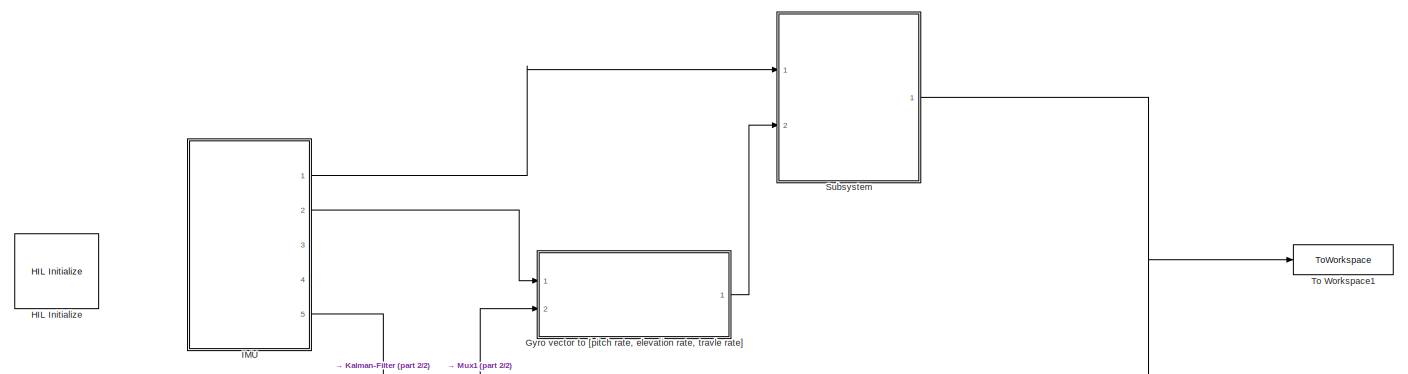
[diagram: root canvas - part 1/2, full width, top band]
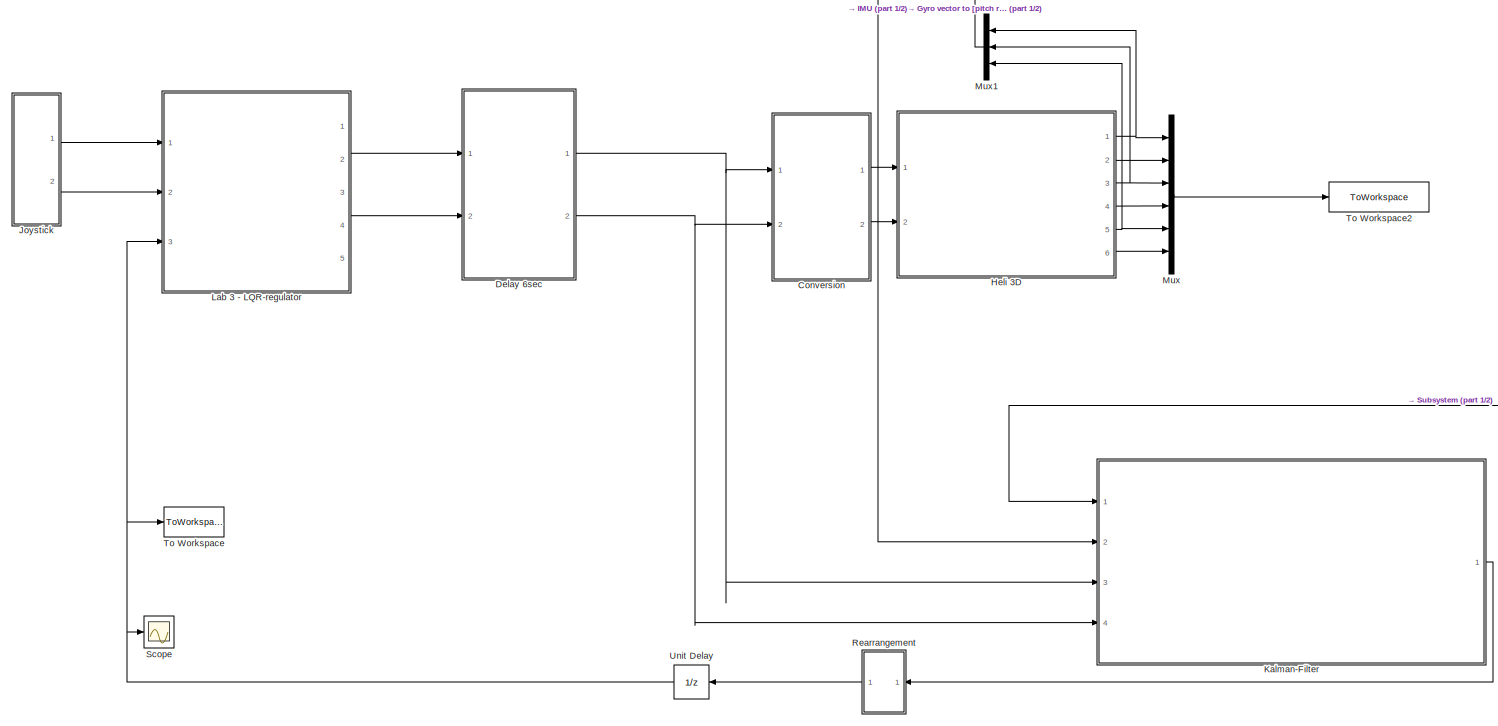
[diagram: root canvas - part 2/2, full width, middle band]
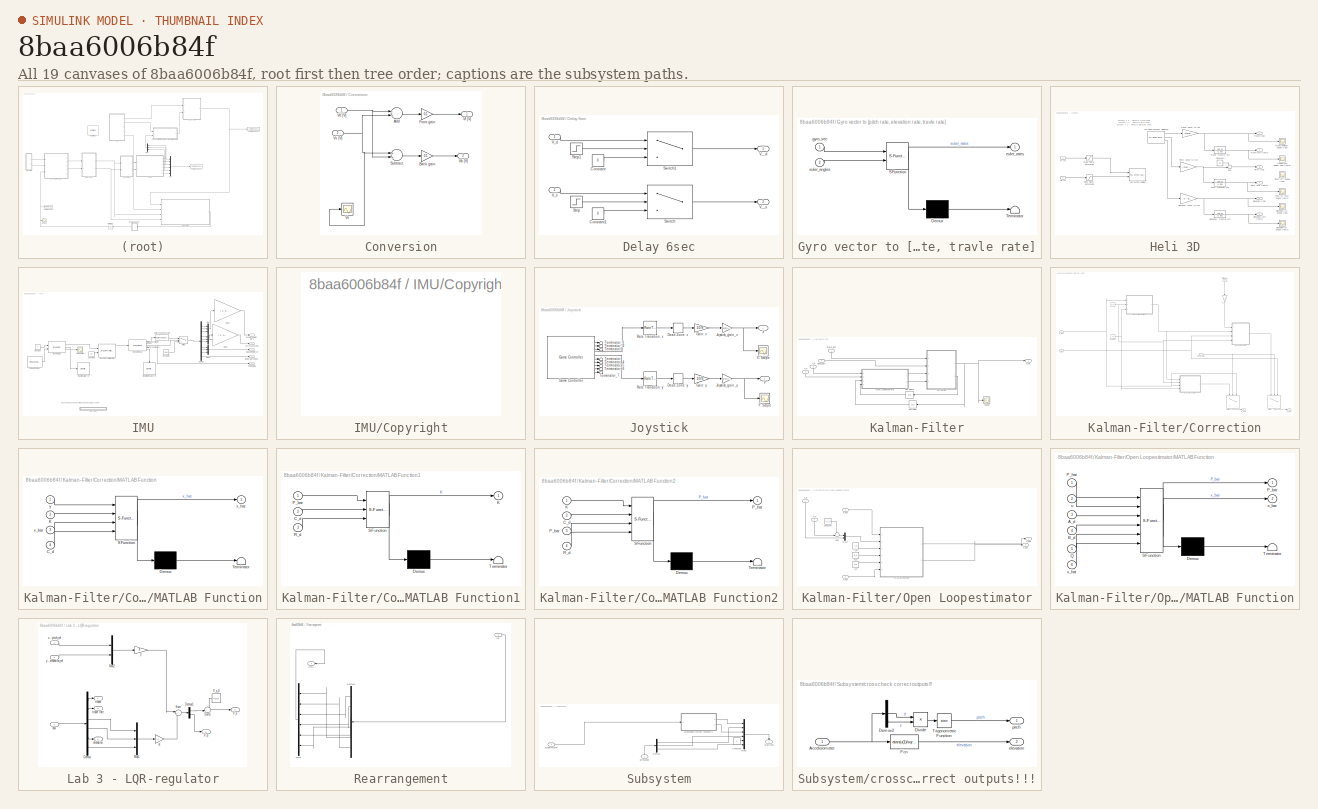
[diagram: thumbnail index - all 19 canvases of the model, root first then tree order]
MODEL slx_8baa6006b84f
KIND model
CONFIG AbsTol = auto
CONFIG FixedStep = 0.002
CONFIG MaxStep = auto
CONFIG MinStep = auto
CONFIG PostLoadFcn = qc_set_target_type(getConfigSet(bdroot, 'QUARC Default Target Configuration'));
CONFIG RelTol = 1e-3
CONFIG SampleTimeConstraint = Unconstrained
CONFIG Solver = ode1
CONFIG SolverMode = Auto
CONFIG SolverName = ode1
CONFIG StartTime = 0.0
CONFIG StopTime = inf
BLOCK [SubSystem] Conversion
  Ports = [2, 2]
  RequestExecContextInheritance = off
  Variant = off
BLOCK [Sum] Conversion/Add
  InputSameDT = off
  Inputs = -+
  OutDataTypeStr = Inherit: Inherit via internal rule
  Ports = [2, 1]
  SaturateOnIntegerOverflow = off
BLOCK [Gain] Conversion/Back gain
  Gain = 0.5
  OutDataTypeStr = Inherit: Inherit via internal rule
  ParamDataTypeStr = Inherit: Inherit via internal rule
  SaturateOnIntegerOverflow = off
BLOCK [Gain] Conversion/Front gain
  Gain = 0.5
  OutDataTypeStr = Inherit: Inherit via internal rule
  ParamDataTypeStr = Inherit: Inherit via internal rule
  SaturateOnIntegerOverflow = off
BLOCK [Sum] Conversion/Subtract
  InputSameDT = off
  OutDataTypeStr = Inherit: Inherit via internal rule
  Ports = [2, 1]
  SaturateOnIntegerOverflow = off
BLOCK [Outport] Conversion/Vb [V]
  IconDisplay = Port number
  Port = 2
BLOCK [Inport] Conversion/Vd [V]
  IconDisplay = Port number
BLOCK [Outport] Conversion/Vf [V]
  IconDisplay = Port number
BLOCK [Scope] Conversion/Vs
  Ports = [1]
  ScopeSpecificationString = Simulink.scopes.TimeScopeBlockCfg('CurrentConfiguration', extmgr.ConfigurationSet(extmgr.Configuration('Core','General UI',true),extmgr.Configuration('Core','Source UI',true),extmgr.Configuration('Sources','WiredSimulink',true,'DataLoggingVariableName','ScopeData1','DataLoggingSaveFormat','StructureWithTime','DataLoggingLimitDataPoints',true,'DataLoggingDecimation','1','DataLoggingDecimateData',tr...<+1699ch>
BLOCK [Inport] Conversion/Vs [V]
  IconDisplay = Port number
  Port = 2
BLOCK [SubSystem] Delay 6sec
  Ports = [2, 2]
  RequestExecContextInheritance = off
  Variant = off
BLOCK [Constant] Delay 6sec/Constant
  Value = 0
BLOCK [Constant] Delay 6sec/Constant1
  Value = 0
BLOCK [Step] Delay 6sec/Step
  SampleTime = 0
  Time = 6
BLOCK [Step] Delay 6sec/Step1
  SampleTime = 0
  Time = 6
BLOCK [Switch] Delay 6sec/Switch
  Criteria = u2 > Threshold
  InputSameDT = off
  SaturateOnIntegerOverflow = off
BLOCK [Switch] Delay 6sec/Switch1
  Criteria = u2 > Threshold
  InputSameDT = off
  SaturateOnIntegerOverflow = off
BLOCK [Outport] Delay 6sec/V__d
  IconDisplay = Port number
BLOCK [Outport] Delay 6sec/V__s
  IconDisplay = Port number
  Port = 2
BLOCK [Inport] Delay 6sec/V_d
  IconDisplay = Port number
BLOCK [Inport] Delay 6sec/V_s
  IconDisplay = Port number
  Port = 2
BLOCK [SubSystem] Gyro vector to [pitch rate, elevation rate, travle rate]
  ErrorFcn = Stateflow.Translate.translate
  PermitHierarchicalResolution = ExplicitOnly
  Ports = [2, 1]
  RequestExecContextInheritance = off
  SFBlockType = MATLAB Function
  TreatAsAtomicUnit = on
  Variant = off
BLOCK [Demux] Gyro vector to [pitch rate, elevation rate, travle rate]/ Demux 
  Outputs = 1
  Ports = [1, 1]
BLOCK [S-Function] Gyro vector to [pitch rate, elevation rate, travle rate]/ SFunction 
  EnableBusSupport = on
  FunctionName = sf_sfun
  PortCounts = [2 2]
  Ports = [2, 2]
  SFunctionDeploymentMode = off
  Tag = Stateflow S-Function heli_q8 2
BLOCK [Terminator] Gyro vector to [pitch rate, elevation rate, travle rate]/ Terminator 
BLOCK [Inport] Gyro vector to [pitch rate, elevation rate, travle rate]/euler_angles
  IconDisplay = Port number
  Port = 2
BLOCK [Outport] Gyro vector to [pitch rate, elevation rate, travle rate]/euler_rates
  IconDisplay = Port number
BLOCK [Inport] Gyro vector to [pitch rate, elevation rate, travle rate]/gyro_vec
  IconDisplay = Port number
BLOCK [Reference] HIL Initialize  REF=quarc_library/Data Acquisition/Generic/Configuration/HIL Initialize
  AttributesFormatString = %<object_name> (%<board_type>-%<board_number>)
  Ports = []
  Priority = -99
  SourceBlock = quarc_library/Data Acquisition/Generic/Configuration/HIL Initialize
  SourceType = HIL Initialize
  UserDataPersistent = on
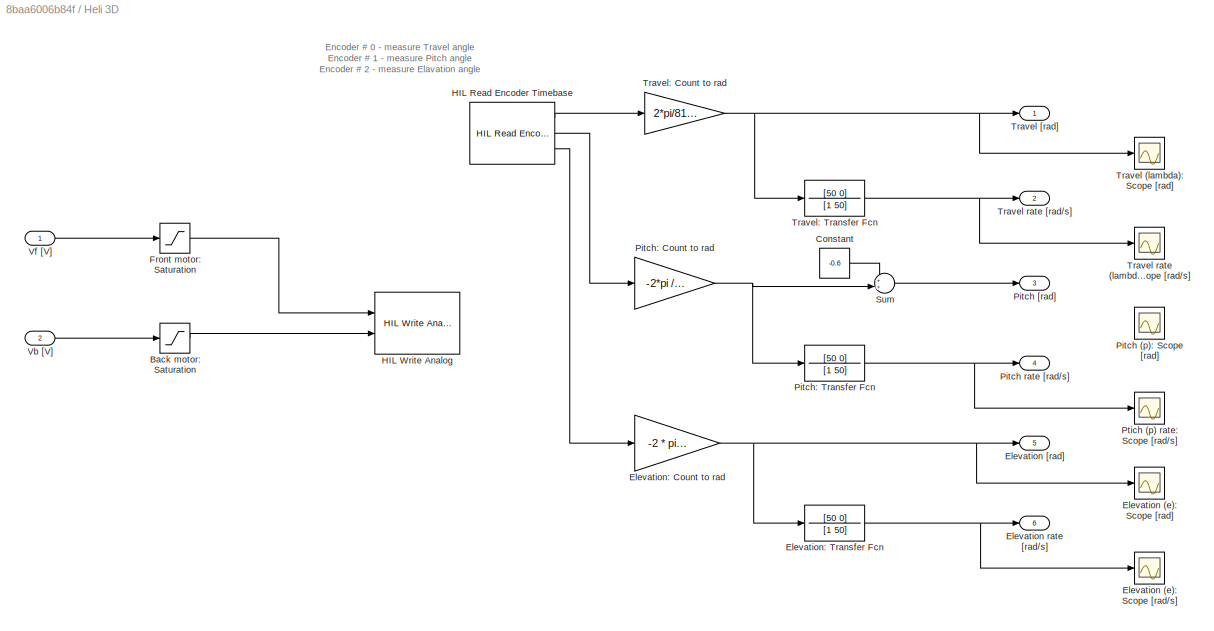
BLOCK [SubSystem] Heli 3D
  Ports = [2, 6]
  RequestExecContextInheritance = off
  Variant = off
BLOCK [Saturate] Heli 3D/Back motor: Saturation
  InputPortMap = u0
  LowerLimit = -5
  Ports = [1, 1]
  UpperLimit = 5
BLOCK [Constant] Heli 3D/Constant
  Value = -0.6
BLOCK [Scope] Heli 3D/Elevation (e): Scope [rad//s]
  Ports = [1]
  ScopeSpecificationString = C++SS(StrPVP('Location','[1236, 673, 1560, 912]'),StrPVP('Open','off'),MxPVP('AxesTitles',24,'struct(''axes1'',''%<SignalLabel>'')'),MxPVP('ScopeGraphics',28,'struct(''FigureColor'',''[0.5 0.5 0.5]'',''AxesColor'',''[0 0 0]'',''AxesTickColor'',''[1 1 1]'',''LineColors'',''[1 1 0;1 0 1;0 1 1;1 0 0;0 1 0;0 0 1]'',''LineStyles'',''-|-|-|-|-|-'',''LineWidths'',''[0.5 0.5 0.5 0.5 0.5 0.5]'',''MarkerSty...<+342ch>
BLOCK [Scope] Heli 3D/Elevation (e): Scope [rad]
  Ports = [1]
  ScopeSpecificationString = Simulink.scopes.TimeScopeBlockCfg('CurrentConfiguration', extmgr.ConfigurationSet(extmgr.Configuration('Core','General UI',true),extmgr.Configuration('Core','Source UI',true),extmgr.Configuration('Sources','WiredSimulink',true,'DataLoggingVariableName','ScopeData12','DataLoggingSaveFormat','StructureWithTime','DataLoggingLimitDataPoints',true,'DataLoggingDecimation','1','DataLoggingDecimateData',t...<+1718ch>
BLOCK [Outport] Heli 3D/Elevation [rad]
  IconDisplay = Port number
  Port = 5
BLOCK [Outport] Heli 3D/Elevation rate [rad//s]
  IconDisplay = Port number
  Port = 6
BLOCK [Gain] Heli 3D/Elevation: Count to rad
  Gain = -2 * pi /4096
  OutDataTypeStr = Inherit: Inherit via internal rule
  ParamDataTypeStr = Inherit: Inherit via internal rule
  SaturateOnIntegerOverflow = off
BLOCK [TransferFcn] Heli 3D/Elevation: Transfer Fcn
  Denominator = [1 50]
  Numerator = [50 0]
BLOCK [Saturate] Heli 3D/Front motor: Saturation
  InputPortMap = u0
  LowerLimit = -5
  Ports = [1, 1]
  UpperLimit = 5
BLOCK [Reference] Heli 3D/HIL Read Encoder Timebase  REF=quarc_library/Data Acquisition/Generic/Timebases/HIL Read Encoder
Timebase
  AttributesFormatString = (%<object_name>)
  Ports = [0, 3]
  SourceBlock = quarc_library/Data Acquisition/Generic/Timebases/HIL Read Encoder\nTimebase
  SourceType = HIL Read Encoder Timebase
  UserDataPersistent = on
BLOCK [Reference] Heli 3D/HIL Write Analog  REF=quarc_library/Data Acquisition/Generic/Immediate I//O/HIL Write Analog
  AttributesFormatString = (%<object_name>)
  Ports = [2]
  SourceBlock = quarc_library/Data Acquisition/Generic/Immediate I//O/HIL Write Analog
  SourceType = HIL Write Analog
  UserDataPersistent = on
BLOCK [Scope] Heli 3D/Pitch (p): Scope [rad]
  Ports = [1]
  ScopeSpecificationString = Simulink.scopes.TimeScopeBlockCfg('CurrentConfiguration', extmgr.ConfigurationSet(extmgr.Configuration('Core','General UI',true),extmgr.Configuration('Core','Source UI',true),extmgr.Configuration('Sources','WiredSimulink',true,'DataLoggingVariableName','ScopeData10','DataLoggingSaveFormat','StructureWithTime','DataLoggingLimitDataPoints',true,'DataLoggingDecimation','1','DataLoggingDecimateData',t...<+1671ch>
BLOCK [Outport] Heli 3D/Pitch [rad]
  IconDisplay = Port number
  Port = 3
BLOCK [Outport] Heli 3D/Pitch rate [rad//s]
  IconDisplay = Port number
  Port = 4
BLOCK [Gain] Heli 3D/Pitch: Count to rad
  Gain = -2*pi /4096
  OutDataTypeStr = Inherit: Inherit via internal rule
  ParamDataTypeStr = Inherit: Inherit via internal rule
  SaturateOnIntegerOverflow = off
BLOCK [TransferFcn] Heli 3D/Pitch: Transfer Fcn
  Denominator = [1 50]
  Numerator = [50 0]
BLOCK [Scope] Heli 3D/Ptich (p) rate: Scope [rad//s]
  Ports = [1]
  ScopeSpecificationString = C++SS(StrPVP('Location','[1236, 673, 1560, 912]'),StrPVP('Open','off'),MxPVP('AxesTitles',24,'struct(''axes1'',''%<SignalLabel>'')'),MxPVP('ScopeGraphics',28,'struct(''FigureColor'',''[0.5 0.5 0.5]'',''AxesColor'',''[0 0 0]'',''AxesTickColor'',''[1 1 1]'',''LineColors'',''[1 1 0;1 0 1;0 1 1;1 0 0;0 1 0;0 0 1]'',''LineStyles'',''-|-|-|-|-|-'',''LineWidths'',''[0.5 0.5 0.5 0.5 0.5 0.5]'',''MarkerSty...<+342ch>
BLOCK [Sum] Heli 3D/Sum
  IconShape = round
  InputSameDT = off
  Inputs = ++|
  OutDataTypeStr = Inherit: Inherit via internal rule
  Ports = [2, 1]
  SaturateOnIntegerOverflow = off
BLOCK [Scope] Heli 3D/Travel (lambda): Scope [rad]
  Ports = [1]
  ScopeSpecificationString = Simulink.scopes.TimeScopeBlockCfg('CurrentConfiguration', extmgr.ConfigurationSet(extmgr.Configuration('Core','General UI',true),extmgr.Configuration('Core','Source UI',true),extmgr.Configuration('Sources','WiredSimulink',true,'DataLoggingVariableName','ScopeData8','DataLoggingSaveFormat','StructureWithTime','DataLoggingLimitDataPoints',true,'DataLoggingDecimation','1','DataLoggingDecimateData',tr...<+1672ch>
BLOCK [Outport] Heli 3D/Travel [rad]
  IconDisplay = Port number
BLOCK [Scope] Heli 3D/Travel rate (lambda): Scope [rad//s]
  Ports = [1]
  ScopeSpecificationString = Simulink.scopes.TimeScopeBlockCfg('CurrentConfiguration', extmgr.ConfigurationSet(extmgr.Configuration('Core','General UI',true),extmgr.Configuration('Core','Source UI',true),extmgr.Configuration('Sources','WiredSimulink',true,'DataLoggingVariableName','ScopeData9','DataLoggingSaveFormat','StructureWithTime','DataLoggingLimitDataPoints',true,'DataLoggingDecimation','1','DataLoggingDecimateData',tr...<+1672ch>
BLOCK [Outport] Heli 3D/Travel rate [rad//s]
  IconDisplay = Port number
  Port = 2
BLOCK [Gain] Heli 3D/Travel: Count to rad
  Gain = 2*pi/8192
  OutDataTypeStr = Inherit: Inherit via internal rule
  ParamDataTypeStr = Inherit: Inherit via internal rule
  SaturateOnIntegerOverflow = off
BLOCK [TransferFcn] Heli 3D/Travel: Transfer Fcn
  Denominator = [1 50]
  Numerator = [50 0]
BLOCK [Inport] Heli 3D/Vb [V]
  IconDisplay = Port number
  Port = 2
BLOCK [Inport] Heli 3D/Vf [V]
  IconDisplay = Port number
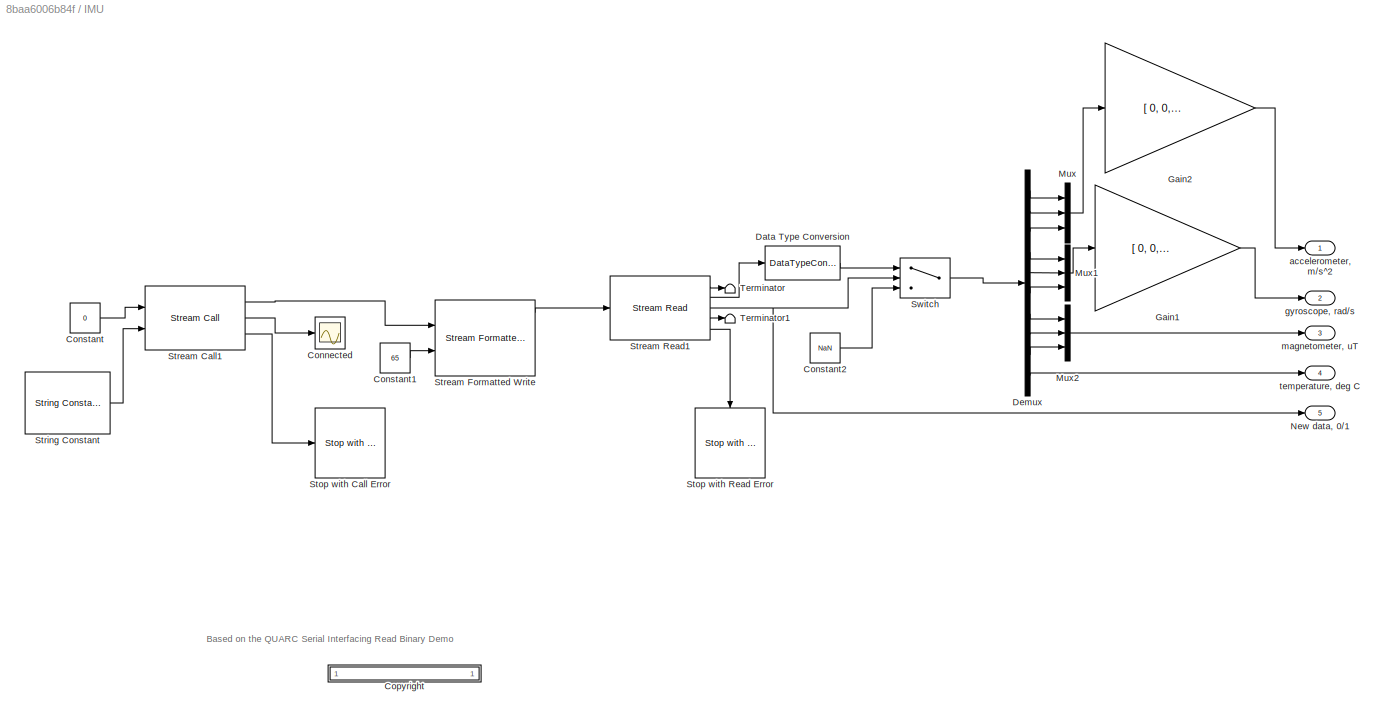
BLOCK [SubSystem] IMU
  Ports = [0, 5]
  RequestExecContextInheritance = off
  Variant = off
BLOCK [Scope] IMU/Connected
  Ports = [1]
  ScopeSpecificationString = C++SS(StrPVP('Location','[9, 751, 333, 990]'),StrPVP('Open','off'),MxPVP('AxesTitles',24,'struct(''axes1'',''%<SignalLabel>'')'),StrPVP('DataFormat','StructureWithTime'),StrPVP('BlockParamSampleTime','0'),StrPVP('LimitDataPoints','on'),StrPVP('Decimation','1'),StrPVP('BlockParamSampleInput','off'),StrPVP('SaveName','ScopeData'),StrPVP('SaveName','ScopeData6'))
BLOCK [Constant] IMU/Constant
  Value = 0
BLOCK [Constant] IMU/Constant1
  Value = 65
BLOCK [Constant] IMU/Constant2
  Value = NaN
BLOCK [SubSystem] IMU/<copyright redacted>
  OpenFcn = web('http://www.quanser.com/');
  Permissions = NoReadOrWrite
  PermitHierarchicalResolution = None
  Ports = []
  RequestExecContextInheritance = off
  Variant = off
BLOCK [DataTypeConversion] IMU/Data Type Conversion
  OutDataTypeStr = double
  RndMeth = Floor
  SaturateOnIntegerOverflow = off
BLOCK [Demux] IMU/Demux
  DisplayOption = bar
  Outputs = 10
  Ports = [1, 10]
BLOCK [Gain] IMU/Gain1
  Gain = [ 0, 0, 1; 0, 1, 0; -1, 0, 0]
  Multiplication = Matrix(K*u) (u vector)
  OutDataTypeStr = Inherit: Inherit via internal rule
  ParamDataTypeStr = Inherit: Inherit via internal rule
  SaturateOnIntegerOverflow = off
BLOCK [Gain] IMU/Gain2
  Gain = [ 0, 0, 1; 0, 1, 0; -1, 0, 0]
  Multiplication = Matrix(K*u) (u vector)
  OutDataTypeStr = Inherit: Inherit via internal rule
  ParamDataTypeStr = Inherit: Inherit via internal rule
  SaturateOnIntegerOverflow = off
BLOCK [Mux] IMU/Mux
  DisplayOption = bar
  Inputs = 3
  Ports = [3, 1]
BLOCK [Mux] IMU/Mux1
  DisplayOption = bar
  Inputs = 3
  Ports = [3, 1]
BLOCK [Mux] IMU/Mux2
  DisplayOption = bar
  Inputs = 3
  Ports = [3, 1]
BLOCK [Outport] IMU/New data, 0//1
  IconDisplay = Port number
  Port = 5
BLOCK [Reference] IMU/Stop with Call Error  REF=quarc_library/Sinks/Error Handling/Stop with Error
  Ports = [1]
  SourceBlock = quarc_library/Sinks/Error Handling/Stop with Error
  SourceType = Stop with Error
BLOCK [Reference] IMU/Stop with Read Error  REF=quarc_library/Sinks/Error Handling/Stop with Error
  Ports = [1]
  SourceBlock = quarc_library/Sinks/Error Handling/Stop with Error
  SourceType = Stop with Error
BLOCK [Reference] IMU/Stream Call1  REF=quarc_library/Communications/Intermediate/Stream Call
  Ports = [2, 3]
  SourceBlock = quarc_library/Communications/Intermediate/Stream Call
  SourceType = Stream Call
BLOCK [Reference] IMU/Stream Formatted Write  REF=quarc_library/Communications/Intermediate/Stream Formatted
Write
  Ports = [2, 5]
  SourceBlock = quarc_library/Communications/Intermediate/Stream Formatted\nWrite
  SourceType = Stream Formatted Write
BLOCK [Reference] IMU/Stream Read1  REF=quarc_library/Communications/Intermediate/Stream Read
  Ports = [1, 5]
  SourceBlock = quarc_library/Communications/Intermediate/Stream Read
  SourceType = Stream Read
BLOCK [Reference] IMU/String Constant  REF=quarc_library/Strings/String Constant
  AttributesFormatString = "serial://IMU:16?baud=115200,word=8,parity=none,stop=1"
  Ports = [0, 1]
  SourceBlock = quarc_library/Strings/String Constant
  SourceType = String Constant
BLOCK [Switch] IMU/Switch
  Criteria = u2 > Threshold
  InputSameDT = off
  SaturateOnIntegerOverflow = off
BLOCK [Terminator] IMU/Terminator
BLOCK [Terminator] IMU/Terminator1
BLOCK [Outport] IMU/accelerometer, m//s^2
  IconDisplay = Port number
BLOCK [Outport] IMU/gyroscope, rad//s
  IconDisplay = Port number
  Port = 2
BLOCK [Outport] IMU/magnetometer, uT
  IconDisplay = Port number
  Port = 3
BLOCK [Outport] IMU/temperature, deg C
  IconDisplay = Port number
  Port = 4
BLOCK [SubSystem] Joystick
  Ports = [0, 2]
  RequestExecContextInheritance = off
  Variant = off
BLOCK [DeadZone] Joystick/Dead Zone: x
  LowerValue = -0.1
  UpperValue = 0.1
BLOCK [DeadZone] Joystick/Dead Zone: y
  LowerValue = -0.1
  UpperValue = 0.1
BLOCK [Gain] Joystick/Gain: x
  Gain = 10/9
  OutDataTypeStr = Inherit: Inherit via internal rule
  ParamDataTypeStr = Inherit: Inherit via internal rule
  SaturateOnIntegerOverflow = off
BLOCK [Gain] Joystick/Gain: y
  Gain = 10/9
  OutDataTypeStr = Inherit: Inherit via internal rule
  ParamDataTypeStr = Inherit: Inherit via internal rule
  SaturateOnIntegerOverflow = off
BLOCK [Reference] Joystick/Game Controller  REF=quarc_library/Devices/Peripherals/Target/Game Controller
  Ports = [0, 10]
  SourceBlock = quarc_library/Devices/Peripherals/Target/Game Controller
  SourceType = Game Controller
BLOCK [Gain] Joystick/Joystick_gain_x
  Gain = Joystick_gain_x
  OutDataTypeStr = Inherit: Inherit via internal rule
  ParamDataTypeStr = Inherit: Inherit via internal rule
  SaturateOnIntegerOverflow = off
BLOCK [Gain] Joystick/Joystick_gain_y
  Gain = Joystick_gain_y
  OutDataTypeStr = Inherit: Inherit via internal rule
  ParamDataTypeStr = Inherit: Inherit via internal rule
  SaturateOnIntegerOverflow = off
BLOCK [RateTransition] Joystick/Rate Transition: x
BLOCK [RateTransition] Joystick/Rate Transition: y
BLOCK [Terminator] Joystick/Terminator
BLOCK [Terminator] Joystick/Terminator1
BLOCK [Terminator] Joystick/Terminator_1
BLOCK [Terminator] Joystick/Terminator_2
BLOCK [Terminator] Joystick/Terminator_4
BLOCK [Terminator] Joystick/Terminator_5
BLOCK [Terminator] Joystick/Terminator_6
BLOCK [Terminator] Joystick/Terminator_7
BLOCK [Outport] Joystick/X
  IconDisplay = Port number
BLOCK [Scope] Joystick/X: Scope
  Ports = [1]
  ScopeSpecificationString = C++SS(StrPVP('Location','[894, 60, 1218, 301]'),StrPVP('Open','off'),StrPVP('ZoomMode','yonly'),MxPVP('AxesTitles',24,'struct(''axes1'',''%<SignalLabel>'')'),MxPVP('ScopeGraphics',28,'struct(''FigureColor'',''[0.5 0.5 0.5]'',''AxesColor'',''[0 0 0]'',''AxesTickColor'',''[1 1 1]'',''LineColors'',''[1 1 0;1 0 1;0 1 1;1 0 0;0 1 0;0 0 1]'',''LineStyles'',''-|-|-|-|-|-'',''LineWidths'',''[0.5 0.5 0.5 0...<+364ch>
BLOCK [Outport] Joystick/Y
  IconDisplay = Port number
  Port = 2
BLOCK [Scope] Joystick/Y: Scope
  Ports = [1]
  ScopeSpecificationString = C++SS(StrPVP('Location','[894, 368, 1218, 604]'),StrPVP('Open','off'),MxPVP('AxesTitles',24,'struct(''axes1'',''%<SignalLabel>'')'),MxPVP('ScopeGraphics',28,'struct(''FigureColor'',''[0.5 0.5 0.5]'',''AxesColor'',''[0 0 0]'',''AxesTickColor'',''[1 1 1]'',''LineColors'',''[1 1 0;1 0 1;0 1 1;1 0 0;0 1 0;0 0 1]'',''LineStyles'',''-|-|-|-|-|-'',''LineWidths'',''[0.5 0.5 0.5 0.5 0.5 0.5]'',''MarkerStyl...<+340ch>
BLOCK [SubSystem] Kalman-Filter
  Ports = [4, 1]
  RequestExecContextInheritance = off
  Variant = off
BLOCK [SubSystem] Kalman-Filter/Correction
  Ports = [4, 2]
  RequestExecContextInheritance = off
  Variant = off
BLOCK [Constant] Kalman-Filter/Correction/ 
  Value = C_d
BLOCK [Gain] Kalman-Filter/Correction/C_d
  Gain = C_d
  Multiplication = Matrix(K*u)
  OutDataTypeStr = Inherit: Inherit via internal rule
  ParamDataTypeStr = Inherit: Inherit via internal rule
  SaturateOnIntegerOverflow = off
BLOCK [Constant] Kalman-Filter/Correction/Constant
  Value = R
BLOCK [SubSystem] Kalman-Filter/Correction/MATLAB Function
  ErrorFcn = Stateflow.Translate.translate
  PermitHierarchicalResolution = ExplicitOnly
  Ports = [4, 1]
  RequestExecContextInheritance = off
  SFBlockType = MATLAB Function
  TreatAsAtomicUnit = on
  Variant = off
BLOCK [Demux] Kalman-Filter/Correction/MATLAB Function/ Demux 
  Outputs = 1
  Ports = [1, 1]
BLOCK [S-Function] Kalman-Filter/Correction/MATLAB Function/ SFunction 
  EnableBusSupport = on
  FunctionName = sf_sfun
  PortCounts = [4 2]
  Ports = [4, 2]
  SFunctionDeploymentMode = off
  Tag = Stateflow S-Function heli_q8 3
BLOCK [Terminator] Kalman-Filter/Correction/MATLAB Function/ Terminator 
BLOCK [Inport] Kalman-Filter/Correction/MATLAB Function/C_d
  IconDisplay = Port number
  Port = 4
BLOCK [Inport] Kalman-Filter/Correction/MATLAB Function/K
  IconDisplay = Port number
  Port = 2
BLOCK [Inport] Kalman-Filter/Correction/MATLAB Function/x_bar
  IconDisplay = Port number
  Port = 3
BLOCK [Outport] Kalman-Filter/Correction/MATLAB Function/x_hat
  IconDisplay = Port number
BLOCK [Inport] Kalman-Filter/Correction/MATLAB Function/y
  IconDisplay = Port number
BLOCK [SubSystem] Kalman-Filter/Correction/MATLAB Function1
  ErrorFcn = Stateflow.Translate.translate
  PermitHierarchicalResolution = ExplicitOnly
  Ports = [3, 1]
  RequestExecContextInheritance = off
  SFBlockType = MATLAB Function
  TreatAsAtomicUnit = on
  Variant = off
BLOCK [Demux] Kalman-Filter/Correction/MATLAB Function1/ Demux 
  Outputs = 1
  Ports = [1, 1]
BLOCK [S-Function] Kalman-Filter/Correction/MATLAB Function1/ SFunction 
  EnableBusSupport = on
  FunctionName = sf_sfun
  PortCounts = [3 2]
  Ports = [3, 2]
  SFunctionDeploymentMode = off
  Tag = Stateflow S-Function heli_q8 4
BLOCK [Terminator] Kalman-Filter/Correction/MATLAB Function1/ Terminator 
BLOCK [Inport] Kalman-Filter/Correction/MATLAB Function1/C_d
  IconDisplay = Port number
  Port = 2
BLOCK [Outport] Kalman-Filter/Correction/MATLAB Function1/K
  IconDisplay = Port number
BLOCK [Inport] Kalman-Filter/Correction/MATLAB Function1/P_bar
  IconDisplay = Port number
BLOCK [Inport] Kalman-Filter/Correction/MATLAB Function1/R_d
  IconDisplay = Port number
  Port = 3
BLOCK [SubSystem] Kalman-Filter/Correction/MATLAB Function2
  ErrorFcn = Stateflow.Translate.translate
  PermitHierarchicalResolution = ExplicitOnly
  Ports = [4, 1]
  RequestExecContextInheritance = off
  SFBlockType = MATLAB Function
  TreatAsAtomicUnit = on
  Variant = off
BLOCK [Demux] Kalman-Filter/Correction/MATLAB Function2/ Demux 
  Outputs = 1
  Ports = [1, 1]
BLOCK [S-Function] Kalman-Filter/Correction/MATLAB Function2/ SFunction 
  EnableBusSupport = on
  FunctionName = sf_sfun
  PortCounts = [4 2]
  Ports = [4, 2]
  SFunctionDeploymentMode = off
  Tag = Stateflow S-Function heli_q8 5
BLOCK [Terminator] Kalman-Filter/Correction/MATLAB Function2/ Terminator 
BLOCK [Inport] Kalman-Filter/Correction/MATLAB Function2/C_d
  IconDisplay = Port number
  Port = 2
BLOCK [Inport] Kalman-Filter/Correction/MATLAB Function2/K
  IconDisplay = Port number
BLOCK [Inport] Kalman-Filter/Correction/MATLAB Function2/P_bar
  IconDisplay = Port number
  Port = 3
BLOCK [Outport] Kalman-Filter/Correction/MATLAB Function2/P_hat
  IconDisplay = Port number
BLOCK [Inport] Kalman-Filter/Correction/MATLAB Function2/R_d
  IconDisplay = Port number
  Port = 4
BLOCK [Inport] Kalman-Filter/Correction/New_data
  IconDisplay = Port number
  Port = 2
BLOCK [Inport] Kalman-Filter/Correction/P_bar
  IconDisplay = Port number
  Port = 3
BLOCK [Outport] Kalman-Filter/Correction/P_hat
  IconDisplay = Port number
  Port = 2
BLOCK [Inport] Kalman-Filter/Correction/State bus
  IconDisplay = Port number
BLOCK [Switch] Kalman-Filter/Correction/Switch
  Criteria = u2 > Threshold
  InputSameDT = off
  SaturateOnIntegerOverflow = off
BLOCK [Switch] Kalman-Filter/Correction/Switch1
  Criteria = u2 > Threshold
  InputSameDT = off
  SaturateOnIntegerOverflow = off
BLOCK [Inport] Kalman-Filter/Correction/x_bar
  IconDisplay = Port number
  Port = 4
BLOCK [Outport] Kalman-Filter/Correction/x_hat
  IconDisplay = Port number
BLOCK [Inport] Kalman-Filter/New_data
  IconDisplay = Port number
  Port = 2
BLOCK [SubSystem] Kalman-Filter/Open Loopestimator
  Ports = [4, 2]
  RequestExecContextInheritance = off
  Variant = off
BLOCK [Constant] Kalman-Filter/Open Loopestimator/A_d
  Value = A_d
BLOCK [Constant] Kalman-Filter/Open Loopestimator/B_d
  Value = B_d
BLOCK [Constant] Kalman-Filter/Open Loopestimator/Constant
  Value = V_s_0
BLOCK [SubSystem] Kalman-Filter/Open Loopestimator/MATLAB Function
  ErrorFcn = Stateflow.Translate.translate
  PermitHierarchicalResolution = ExplicitOnly
  Ports = [6, 2]
  RequestExecContextInheritance = off
  SFBlockType = MATLAB Function
  TreatAsAtomicUnit = on
  Variant = off
BLOCK [Demux] Kalman-Filter/Open Loopestimator/MATLAB Function/ Demux 
  Outputs = 1
  Ports = [1, 1]
BLOCK [S-Function] Kalman-Filter/Open Loopestimator/MATLAB Function/ SFunction 
  EnableBusSupport = on
  FunctionName = sf_sfun
  PortCounts = [6 3]
  Ports = [6, 3]
  SFunctionDeploymentMode = off
  Tag = Stateflow S-Function heli_q8 1
BLOCK [Terminator] Kalman-Filter/Open Loopestimator/MATLAB Function/ Terminator 
BLOCK [Inport] Kalman-Filter/Open Loopestimator/MATLAB Function/A_d
  IconDisplay = Port number
  Port = 3
BLOCK [Inport] Kalman-Filter/Open Loopestimator/MATLAB Function/B_d
  IconDisplay = Port number
  Port = 4
BLOCK [Outport] Kalman-Filter/Open Loopestimator/MATLAB Function/P_bar
  IconDisplay = Port number
BLOCK [Inport] Kalman-Filter/Open Loopestimator/MATLAB Function/P_hat
  IconDisplay = Port number
BLOCK [Inport] Kalman-Filter/Open Loopestimator/MATLAB Function/Q
  IconDisplay = Port number
  Port = 5
BLOCK [Inport] Kalman-Filter/Open Loopestimator/MATLAB Function/u
  IconDisplay = Port number
  Port = 2
BLOCK [Outport] Kalman-Filter/Open Loopestimator/MATLAB Function/x_bar
  IconDisplay = Port number
  Port = 2
BLOCK [Inport] Kalman-Filter/Open Loopestimator/MATLAB Function/x_hat
  IconDisplay = Port number
  Port = 6
BLOCK [Mux] Kalman-Filter/Open Loopestimator/Mux2
  DisplayOption = bar
  Inputs = 2
  Ports = [2, 1]
BLOCK [Outport] Kalman-Filter/Open Loopestimator/P_bar
  IconDisplay = Port number
BLOCK [Inport] Kalman-Filter/Open Loopestimator/P_hat
  IconDisplay = Port number
  Port = 4
BLOCK [Constant] Kalman-Filter/Open Loopestimator/Q_d
  Value = Q_d
BLOCK [Sum] Kalman-Filter/Open Loopestimator/Sum
  IconShape = round
  InputSameDT = off
  Inputs = -+|
  OutDataTypeStr = Inherit: Inherit via internal rule
  Ports = [2, 1]
  SaturateOnIntegerOverflow = off
BLOCK [Inport] Kalman-Filter/Open Loopestimator/V_d
  IconDisplay = Port number
BLOCK [Inport] Kalman-Filter/Open Loopestimator/V_s
  IconDisplay = Port number
  Port = 2
BLOCK [Outport] Kalman-Filter/Open Loopestimator/x_bar
  IconDisplay = Port number
  Port = 2
BLOCK [Inport] Kalman-Filter/Open Loopestimator/x_hat
  IconDisplay = Port number
  Port = 3
BLOCK [Scope] Kalman-Filter/Scope
  Ports = [1]
  ScopeSpecificationString = Simulink.scopes.TimeScopeBlockCfg('CurrentConfiguration', extmgr.ConfigurationSet(extmgr.Configuration('Core','General UI',true),extmgr.Configuration('Core','Source UI',true),extmgr.Configuration('Sources','WiredSimulink',true,'DataLoggingVariableName','ScopeData1'),extmgr.Configuration('Visuals','Time Domain',true,'SerializedDisplays',{struct('MinYLimReal','-1.05522','MaxYLimReal','0.92809','YLab...<+1502ch>
BLOCK [Inport] Kalman-Filter/State_bus
  IconDisplay = Port number
BLOCK [UnitDelay] Kalman-Filter/Unit Delay
  InitialCondition = [0,0,0,0,0,0]
  SampleTime = 0.002
BLOCK [UnitDelay] Kalman-Filter/Unit Delay2
  InitialCondition = P_init
  SampleTime = 0.002
BLOCK [Inport] Kalman-Filter/V_d
  IconDisplay = Port number
  Port = 3
BLOCK [Inport] Kalman-Filter/V_s
  IconDisplay = Port number
  Port = 4
BLOCK [Outport] Kalman-Filter/x_hat
  IconDisplay = Port number
BLOCK [SubSystem] Lab 3 - LQR-regulator
  Ports = [3, 5]
  RequestExecContextInheritance = off
  Variant = off
BLOCK [Demux] Lab 3 - LQR-regulator/Demux
  DisplayOption = bar
  Outputs = 6
  Ports = [1, 6]
BLOCK [Demux] Lab 3 - LQR-regulator/Demux1
  DisplayOption = bar
  Outputs = 2
  Ports = [1, 2]
BLOCK [Gain] Lab 3 - LQR-regulator/F
  Gain = F
  Multiplication = Matrix(K*u)
  OutDataTypeStr = Inherit: Inherit via internal rule
  ParamDataTypeStr = Inherit: Inherit via internal rule
  SaturateOnIntegerOverflow = off
BLOCK [Gain] Lab 3 - LQR-regulator/K
  Gain = K
  Multiplication = Matrix(K*u)
  OutDataTypeStr = Inherit: Inherit via internal rule
  ParamDataTypeStr = Inherit: Inherit via internal rule
  SaturateOnIntegerOverflow = off
BLOCK [Mux] Lab 3 - LQR-regulator/Mux1
  DisplayOption = bar
  Inputs = 3
  Ports = [3, 1]
BLOCK [Mux] Lab 3 - LQR-regulator/Mux2
  DisplayOption = bar
  Inputs = 2
  Ports = [2, 1]
BLOCK [Sum] Lab 3 - LQR-regulator/Sum
  IconShape = round
  InputSameDT = off
  Inputs = |+-
  OutDataTypeStr = Inherit: Inherit via internal rule
  Ports = [2, 1]
  SaturateOnIntegerOverflow = off
BLOCK [Sum] Lab 3 - LQR-regulator/Sum1
  IconShape = round
  InputSameDT = off
  Inputs = ++|
  OutDataTypeStr = Inherit: Inherit via internal rule
  Ports = [2, 1]
  SaturateOnIntegerOverflow = off
BLOCK [Outport] Lab 3 - LQR-regulator/V_d
  IconDisplay = Port number
  Port = 2
BLOCK [Outport] Lab 3 - LQR-regulator/V_s
  IconDisplay = Port number
  Port = 4
BLOCK [Constant] Lab 3 - LQR-regulator/V_s_0 
  Value = V_s_0
BLOCK [Inport] Lab 3 - LQR-regulator/bus
  IconDisplay = Port number
  Port = 3
BLOCK [Outport] Lab 3 - LQR-regulator/elevation
  IconDisplay = Port number
  Port = 5
BLOCK [Outport] Lab 3 - LQR-regulator/travel
  IconDisplay = Port number
BLOCK [Outport] Lab 3 - LQR-regulator/travel rate
  IconDisplay = Port number
  Port = 3
BLOCK [Inport] Lab 3 - LQR-regulator/x - pitch_ref
  IconDisplay = Port number
BLOCK [Inport] Lab 3 - LQR-regulator/y - elevation_ref
  IconDisplay = Port number
  Port = 2
BLOCK [Mux] Mux
  DisplayOption = bar
  Inputs = 6
  Ports = [6, 1]
BLOCK [Mux] Mux1
  DisplayOption = bar
  Inputs = 3
  Ports = [3, 1]
BLOCK [SubSystem] Rearrangement
  Ports = [1, 1]
  RequestExecContextInheritance = off
  Variant = off
BLOCK [Demux] Rearrangement/Demux1
  DisplayOption = bar
  Outputs = 6
  Ports = [1, 6]
BLOCK [Inport] Rearrangement/In1
  IconDisplay = Port number
BLOCK [Mux] Rearrangement/Mux2
  DisplayOption = bar
  Inputs = 6
  Ports = [6, 1]
BLOCK [Outport] Rearrangement/Out1
  IconDisplay = Port number
BLOCK [Scope] Scope
  Ports = [1]
  ScopeSpecificationString = Simulink.scopes.TimeScopeBlockCfg('CurrentConfiguration', extmgr.ConfigurationSet(extmgr.Configuration('Core','General UI',true),extmgr.Configuration('Core','Source UI',true),extmgr.Configuration('Sources','WiredSimulink',true,'DataLoggingVariableName','ScopeData1'),extmgr.Configuration('Visuals','Time Domain',true,'SerializedDisplays',{struct('MinYLimReal','-1.06931','MaxYLimReal','1.74039','YLab...<+1520ch>
BLOCK [SubSystem] Subsystem
  Ports = [2, 1]
  RequestExecContextInheritance = off
  Variant = off
BLOCK [Constant] Subsystem/Constant
  Value = 0
BLOCK [Demux] Subsystem/Demux
  DisplayOption = bar
  Outputs = 3
  Ports = [1, 3]
BLOCK [Mux] Subsystem/Mux2
  DisplayOption = bar
  Inputs = 6
  Ports = [6, 1]
BLOCK [Inport] Subsystem/accelerometer
  IconDisplay = Port number
BLOCK [SubSystem] Subsystem/crosscheck correct outputs!!!
  Ports = [1, 2]
  RequestExecContextInheritance = off
  Variant = off
BLOCK [Inport] Subsystem/crosscheck correct outputs!!!/Accelerometer
  IconDisplay = Port number
BLOCK [Demux] Subsystem/crosscheck correct outputs!!!/Demux2
  DisplayOption = bar
  Outputs = 3
  Ports = [1, 3]
BLOCK [Product] Subsystem/crosscheck correct outputs!!!/Divide
  InputSameDT = off
  Inputs = */
  OutDataTypeStr = Inherit: Inherit via internal rule
  Ports = [2, 1]
  RndMeth = Floor
  SaturateOnIntegerOverflow = off
BLOCK [Fcn] Subsystem/crosscheck correct outputs!!!/Fcn
  Expr = atan(u(1)/sqrt((u(2))^2+(u(3))^2))
BLOCK [Trigonometry] Subsystem/crosscheck correct outputs!!!/Trigonometric Function
  Operator = atan
  Ports = [1, 1]
BLOCK [Outport] Subsystem/crosscheck correct outputs!!!/elevation
  IconDisplay = Port number
  Port = 2
BLOCK [Outport] Subsystem/crosscheck correct outputs!!!/pitch
  IconDisplay = Port number
BLOCK [Inport] Subsystem/gyroscope 
  IconDisplay = Port number
  Port = 2
BLOCK [Outport] Subsystem/state bus
  IconDisplay = Port number
BLOCK [ToWorkspace] To Workspace
  FixptAsFi = on
  MaxDataPoints = inf
  Ports = [1]
  SampleTime = -1
  Save2DSignal = 3-D array (concatenate along third dimension)
  SaveFormat = Structure With Time
  VariableName = kalman_bus
BLOCK [ToWorkspace] To Workspace1
  FixptAsFi = on
  MaxDataPoints = inf
  Ports = [1]
  SampleTime = -1
  Save2DSignal = 3-D array (concatenate along third dimension)
  SaveFormat = Structure With Time
  VariableName = IMU_bus
BLOCK [ToWorkspace] To Workspace2
  FixptAsFi = on
  MaxDataPoints = inf
  Ports = [1]
  SampleTime = -1
  Save2DSignal = 3-D array (concatenate along third dimension)
  SaveFormat = Structure With Time
  VariableName = encoder_bus
BLOCK [UnitDelay] Unit Delay
  InitialCondition = [0,0,0,0,0,0]
  SampleTime = 0.002
ANNOTATION Heli 3D: Encoder # 0 - measure Travel angle Encoder # 1 - measure Pitch angle Encoder # 2 - measure Elavation angle
ANNOTATION IMU: Based on the QUARC Serial Interfacing Read Binary Demo
LINE Conversion/Add:1 -> Conversion/Front gain:1
LINE Conversion/Back gain:1 -> Conversion/Vb [V]:1
LINE Conversion/Front gain:1 -> Conversion/Vf [V]:1
LINE Conversion/Subtract:1 -> Conversion/Back gain:1
NET Conversion/Vd [V]:1 -> Conversion/Add:1, Conversion/Subtract:2
NET Conversion/Vs [V]:1 -> Conversion/Add:2, Conversion/Subtract:1, Conversion/Vs:1
LINE Conversion:1 -> Heli 3D:1
LINE Conversion:2 -> Heli 3D:2
LINE Delay 6sec/Constant1:1 -> Delay 6sec/Switch:3
LINE Delay 6sec/Constant:1 -> Delay 6sec/Switch1:3
LINE Delay 6sec/Step1:1 -> Delay 6sec/Switch1:2
LINE Delay 6sec/Step:1 -> Delay 6sec/Switch:2
LINE Delay 6sec/Switch1:1 -> Delay 6sec/V__d:1
LINE Delay 6sec/Switch:1 -> Delay 6sec/V__s:1
LINE Delay 6sec/V_d:1 -> Delay 6sec/Switch1:1
LINE Delay 6sec/V_s:1 -> Delay 6sec/Switch:1
NET Delay 6sec:1 -> Conversion:1, Kalman-Filter:3
NET Delay 6sec:2 -> Conversion:2, Kalman-Filter:4
LINE Gyro vector to [pitch rate, elevation rate, travle rate]:1 -> Subsystem:2
LINE Heli 3D/Back motor: Saturation:1 -> Heli 3D/HIL Write Analog:2
LINE Heli 3D/Constant:1 -> Heli 3D/Sum:1
NET Heli 3D/Elevation: Count to rad:1 -> Heli 3D/Elevation (e): Scope [rad]:1, Heli 3D/Elevation [rad]:1, Heli 3D/Elevation: Transfer Fcn:1
NET Heli 3D/Elevation: Transfer Fcn:1 -> Heli 3D/Elevation (e): Scope [rad//s]:1, Heli 3D/Elevation rate [rad//s]:1
LINE Heli 3D/Front motor: Saturation:1 -> Heli 3D/HIL Write Analog:1
LINE Heli 3D/HIL Read Encoder Timebase:1 -> Heli 3D/Travel: Count to rad:1
LINE Heli 3D/HIL Read Encoder Timebase:2 -> Heli 3D/Pitch: Count to rad:1
LINE Heli 3D/HIL Read Encoder Timebase:3 -> Heli 3D/Elevation: Count to rad:1
NET Heli 3D/Pitch: Count to rad:1 -> Heli 3D/Pitch: Transfer Fcn:1, Heli 3D/Sum:2
NET Heli 3D/Pitch: Transfer Fcn:1 -> Heli 3D/Pitch rate [rad//s]:1, Heli 3D/Ptich (p) rate: Scope [rad//s]:1
LINE Heli 3D/Sum:1 -> Heli 3D/Pitch [rad]:1
NET Heli 3D/Travel: Count to rad:1 -> Heli 3D/Travel (lambda): Scope [rad]:1, Heli 3D/Travel [rad]:1, Heli 3D/Travel: Transfer Fcn:1
NET Heli 3D/Travel: Transfer Fcn:1 -> Heli 3D/Travel rate (lambda): Scope [rad//s]:1, Heli 3D/Travel rate [rad//s]:1
LINE Heli 3D/Vb [V]:1 -> Heli 3D/Back motor: Saturation:1
LINE Heli 3D/Vf [V]:1 -> Heli 3D/Front motor: Saturation:1
NET Heli 3D:1 -> Mux1:1, Mux:1
LINE Heli 3D:2 -> Mux:2
NET Heli 3D:3 -> Mux1:2, Mux:3
LINE Heli 3D:4 -> Mux:4
NET Heli 3D:5 -> Mux1:3, Mux:5
LINE Heli 3D:6 -> Mux:6
LINE IMU/Constant1:1 -> IMU/Stream Formatted Write:2
LINE IMU/Constant2:1 -> IMU/Switch:3
LINE IMU/Constant:1 -> IMU/Stream Call1:1
LINE IMU/Data Type Conversion:1 -> IMU/Switch:1
LINE IMU/Demux:1 -> IMU/Mux:1
LINE IMU/Demux:10 -> IMU/temperature, deg C:1
LINE IMU/Demux:2 -> IMU/Mux:2
LINE IMU/Demux:3 -> IMU/Mux:3
LINE IMU/Demux:4 -> IMU/Mux1:1
LINE IMU/Demux:5 -> IMU/Mux1:2
LINE IMU/Demux:6 -> IMU/Mux1:3
LINE IMU/Demux:7 -> IMU/Mux2:1
LINE IMU/Demux:8 -> IMU/Mux2:2
LINE IMU/Demux:9 -> IMU/Mux2:3
LINE IMU/Gain1:1 -> IMU/gyroscope, rad//s:1
LINE IMU/Gain2:1 -> IMU/accelerometer, m//s^2:1
LINE IMU/Mux1:1 -> IMU/Gain1:1
LINE IMU/Mux2:1 -> IMU/magnetometer, uT:1
LINE IMU/Mux:1 -> IMU/Gain2:1
LINE IMU/Stream Call1:1 -> IMU/Stream Formatted Write:1
LINE IMU/Stream Call1:2 -> IMU/Connected:1
LINE IMU/Stream Call1:3 -> IMU/Stop with Call Error:1
LINE IMU/Stream Formatted Write:1 -> IMU/Stream Read1:1
LINE IMU/Stream Read1:1 -> IMU/Terminator:1
LINE IMU/Stream Read1:2 -> IMU/Data Type Conversion:1
NET IMU/Stream Read1:3 -> IMU/New data, 0//1:1, IMU/Switch:2
LINE IMU/Stream Read1:4 -> IMU/Terminator1:1
LINE IMU/Stream Read1:5 -> IMU/Stop with Read Error:1
LINE IMU/String Constant:1 -> IMU/Stream Call1:2
LINE IMU/Switch:1 -> IMU/Demux:1
LINE IMU:1 -> Subsystem:1
LINE IMU:2 -> Gyro vector to [pitch rate, elevation rate, travle rate]:1
LINE IMU:5 -> Kalman-Filter:2
LINE Joystick/Dead Zone: x:1 -> Joystick/Gain: x:1
LINE Joystick/Dead Zone: y:1 -> Joystick/Gain: y:1
LINE Joystick/Gain: x:1 -> Joystick/Joystick_gain_x:1
LINE Joystick/Gain: y:1 -> Joystick/Joystick_gain_y:1
LINE Joystick/Game Controller:1 -> Joystick/Terminator_1:1
LINE Joystick/Game Controller:10 -> Joystick/Terminator_7:1
LINE Joystick/Game Controller:2 -> Joystick/Terminator_2:1
LINE Joystick/Game Controller:3 -> Joystick/Terminator1:1
LINE Joystick/Game Controller:4 -> Joystick/Rate Transition: x:1
LINE Joystick/Game Controller:5 -> Joystick/Rate Transition: y:1
LINE Joystick/Game Controller:6 -> Joystick/Terminator:1
LINE Joystick/Game Controller:7 -> Joystick/Terminator_4:1
LINE Joystick/Game Controller:8 -> Joystick/Terminator_5:1
LINE Joystick/Game Controller:9 -> Joystick/Terminator_6:1
NET Joystick/Joystick_gain_x:1 -> Joystick/X: Scope:1, Joystick/X:1
NET Joystick/Joystick_gain_y:1 -> Joystick/Y: Scope:1, Joystick/Y:1
LINE Joystick/Rate Transition: x:1 -> Joystick/Dead Zone: x:1
LINE Joystick/Rate Transition: y:1 -> Joystick/Dead Zone: y:1
LINE Joystick:1 -> Lab 3 - LQR-regulator:1
LINE Joystick:2 -> Lab 3 - LQR-regulator:2
NET Kalman-Filter/Correction/ :1 -> Kalman-Filter/Correction/MATLAB Function1:2, Kalman-Filter/Correction/MATLAB Function2:2, Kalman-Filter/Correction/MATLAB Function:4
LINE Kalman-Filter/Correction/C_d:1 -> Kalman-Filter/Correction/MATLAB Function:1
NET Kalman-Filter/Correction/Constant:1 -> Kalman-Filter/Correction/MATLAB Function1:3, Kalman-Filter/Correction/MATLAB Function2:4
NET Kalman-Filter/Correction/MATLAB Function1:1 -> Kalman-Filter/Correction/MATLAB Function2:1, Kalman-Filter/Correction/MATLAB Function:2
LINE Kalman-Filter/Correction/MATLAB Function2:1 -> Kalman-Filter/Correction/Switch1:1
LINE Kalman-Filter/Correction/MATLAB Function:1 -> Kalman-Filter/Correction/Switch:1
NET Kalman-Filter/Correction/New_data:1 -> Kalman-Filter/Correction/Switch1:2, Kalman-Filter/Correction/Switch:2
NET Kalman-Filter/Correction/P_bar:1 -> Kalman-Filter/Correction/MATLAB Function1:1, Kalman-Filter/Correction/MATLAB Function2:3, Kalman-Filter/Correction/Switch1:3
LINE Kalman-Filter/Correction/State bus:1 -> Kalman-Filter/Correction/C_d:1
LINE Kalman-Filter/Correction/Switch1:1 -> Kalman-Filter/Correction/P_hat:1
LINE Kalman-Filter/Correction/Switch:1 -> Kalman-Filter/Correction/x_hat:1
NET Kalman-Filter/Correction/x_bar:1 -> Kalman-Filter/Correction/MATLAB Function:3, Kalman-Filter/Correction/Switch:3
NET Kalman-Filter/Correction:1 -> Kalman-Filter/Scope:1, Kalman-Filter/Unit Delay:1, Kalman-Filter/x_hat:1
LINE Kalman-Filter/Correction:2 -> Kalman-Filter/Unit Delay2:1
LINE Kalman-Filter/New_data:1 -> Kalman-Filter/Correction:2
LINE Kalman-Filter/Open Loopestimator/A_d:1 -> Kalman-Filter/Open Loopestimator/MATLAB Function:3
LINE Kalman-Filter/Open Loopestimator/B_d:1 -> Kalman-Filter/Open Loopestimator/MATLAB Function:4
LINE Kalman-Filter/Open Loopestimator/Constant:1 -> Kalman-Filter/Open Loopestimator/Sum:1
LINE Kalman-Filter/Open Loopestimator/MATLAB Function:1 -> Kalman-Filter/Open Loopestimator/P_bar:1
LINE Kalman-Filter/Open Loopestimator/MATLAB Function:2 -> Kalman-Filter/Open Loopestimator/x_bar:1
LINE Kalman-Filter/Open Loopestimator/Mux2:1 -> Kalman-Filter/Open Loopestimator/MATLAB Function:2
LINE Kalman-Filter/Open Loopestimator/P_hat:1 -> Kalman-Filter/Open Loopestimator/MATLAB Function:1
LINE Kalman-Filter/Open Loopestimator/Q_d:1 -> Kalman-Filter/Open Loopestimator/MATLAB Function:5
LINE Kalman-Filter/Open Loopestimator/Sum:1 -> Kalman-Filter/Open Loopestimator/Mux2:1
LINE Kalman-Filter/Open Loopestimator/V_d:1 -> Kalman-Filter/Open Loopestimator/Mux2:2
LINE Kalman-Filter/Open Loopestimator/V_s:1 -> Kalman-Filter/Open Loopestimator/Sum:2
LINE Kalman-Filter/Open Loopestimator/x_hat:1 -> Kalman-Filter/Open Loopestimator/MATLAB Function:6
LINE Kalman-Filter/Open Loopestimator:1 -> Kalman-Filter/Correction:3
LINE Kalman-Filter/Open Loopestimator:2 -> Kalman-Filter/Correction:4
LINE Kalman-Filter/State_bus:1 -> Kalman-Filter/Correction:1
LINE Kalman-Filter/Unit Delay2:1 -> Kalman-Filter/Open Loopestimator:4
LINE Kalman-Filter/Unit Delay:1 -> Kalman-Filter/Open Loopestimator:3
LINE Kalman-Filter/V_d:1 -> Kalman-Filter/Open Loopestimator:1
LINE Kalman-Filter/V_s:1 -> Kalman-Filter/Open Loopestimator:2
LINE Kalman-Filter:1 -> Rearrangement:1
LINE Lab 3 - LQR-regulator/Demux1:1 -> Lab 3 - LQR-regulator/Sum1:2
LINE Lab 3 - LQR-regulator/Demux1:2 -> Lab 3 - LQR-regulator/V_d:1
LINE Lab 3 - LQR-regulator/Demux:1 -> Lab 3 - LQR-regulator/travel:1
LINE Lab 3 - LQR-regulator/Demux:2 -> Lab 3 - LQR-regulator/travel rate:1
LINE Lab 3 - LQR-regulator/Demux:3 -> Lab 3 - LQR-regulator/Mux1:1
LINE Lab 3 - LQR-regulator/Demux:4 -> Lab 3 - LQR-regulator/Mux1:2
LINE Lab 3 - LQR-regulator/Demux:5 -> Lab 3 - LQR-regulator/elevation:1
LINE Lab 3 - LQR-regulator/Demux:6 -> Lab 3 - LQR-regulator/Mux1:3
LINE Lab 3 - LQR-regulator/F:1 -> Lab 3 - LQR-regulator/Sum:1
LINE Lab 3 - LQR-regulator/K:1 -> Lab 3 - LQR-regulator/Sum:2
LINE Lab 3 - LQR-regulator/Mux1:1 -> Lab 3 - LQR-regulator/K:1
LINE Lab 3 - LQR-regulator/Mux2:1 -> Lab 3 - LQR-regulator/F:1
LINE Lab 3 - LQR-regulator/Sum1:1 -> Lab 3 - LQR-regulator/V_s:1
LINE Lab 3 - LQR-regulator/Sum:1 -> Lab 3 - LQR-regulator/Demux1:1
LINE Lab 3 - LQR-regulator/V_s_0 :1 -> Lab 3 - LQR-regulator/Sum1:1
LINE Lab 3 - LQR-regulator/bus:1 -> Lab 3 - LQR-regulator/Demux:1
LINE Lab 3 - LQR-regulator/x - pitch_ref:1 -> Lab 3 - LQR-regulator/Mux2:1
LINE Lab 3 - LQR-regulator/y - elevation_ref:1 -> Lab 3 - LQR-regulator/Mux2:2
LINE Lab 3 - LQR-regulator:2 -> Delay 6sec:1
LINE Lab 3 - LQR-regulator:4 -> Delay 6sec:2
LINE Mux1:1 -> Gyro vector to [pitch rate, elevation rate, travle rate]:2
LINE Mux:1 -> To Workspace2:1
LINE Rearrangement/Demux1:1 -> Rearrangement/Mux2:3
LINE Rearrangement/Demux1:2 -> Rearrangement/Mux2:4
LINE Rearrangement/Demux1:3 -> Rearrangement/Mux2:5
LINE Rearrangement/Demux1:4 -> Rearrangement/Mux2:6
LINE Rearrangement/Demux1:5 -> Rearrangement/Mux2:1
LINE Rearrangement/Demux1:6 -> Rearrangement/Mux2:2
LINE Rearrangement/In1:1 -> Rearrangement/Demux1:1
LINE Rearrangement/Mux2:1 -> Rearrangement/Out1:1
LINE Rearrangement:1 -> Unit Delay:1
LINE Subsystem/Constant:1 -> Subsystem/Mux2:5
LINE Subsystem/Demux:1 -> Subsystem/Mux2:2
LINE Subsystem/Demux:2 -> Subsystem/Mux2:4
LINE Subsystem/Demux:3 -> Subsystem/Mux2:6
LINE Subsystem/Mux2:1 -> Subsystem/state bus:1
LINE Subsystem/accelerometer:1 -> Subsystem/crosscheck correct outputs!!!:1
NET Subsystem/crosscheck correct outputs!!!/Accelerometer:1 -> Subsystem/crosscheck correct outputs!!!/Demux2:1, Subsystem/crosscheck correct outputs!!!/Fcn:1
LINE Subsystem/crosscheck correct outputs!!!/Demux2:2 -> Subsystem/crosscheck correct outputs!!!/Divide:1
LINE Subsystem/crosscheck correct outputs!!!/Demux2:3 -> Subsystem/crosscheck correct outputs!!!/Divide:2
LINE Subsystem/crosscheck correct outputs!!!/Divide:1 -> Subsystem/crosscheck correct outputs!!!/Trigonometric Function:1
LINE Subsystem/crosscheck correct outputs!!!/Fcn:1 -> Subsystem/crosscheck correct outputs!!!/elevation:1
LINE Subsystem/crosscheck correct outputs!!!/Trigonometric Function:1 -> Subsystem/crosscheck correct outputs!!!/pitch:1
LINE Subsystem/crosscheck correct outputs!!!:1 -> Subsystem/Mux2:1
LINE Subsystem/crosscheck correct outputs!!!:2 -> Subsystem/Mux2:3
LINE Subsystem/gyroscope :1 -> Subsystem/Demux:1
NET Subsystem:1 -> Kalman-Filter:1, To Workspace1:1
NET Unit Delay:1 -> Lab 3 - LQR-regulator:3, Scope:1, To Workspace:1
note: NET lines group one-source signal fan-out (src -> all destinations, sorted); 1:1 wires keep LINE
CHART Kalman-Filter/Open Loopestimator/MATLAB Function states=1 transitions=1
  STATE_LABEL 'eML_blk_kernel()'
  STATE_LABEL "SCRIPT:\nfunction [P_bar, x_bar] = open_loop_prediction( P_hat,  u, A_d, B_d, Q, x_hat)\n    x_bar = A_d * x_hat + B_d * u\n\n    \n    P_bar = A_d * P_hat *(A_d)'+Q\n     \nend"
CHART Gyro vector to [pitch rate, elevation rate, travle rate] states=1 transitions=1
  STATE_LABEL 'eML_blk_kernel()'
  STATE_LABEL 'SCRIPT:\nfunction euler_rates = gyro_vec_to_euler_rates(gyro_vec,euler_angles)\n%#codegen\n    phi = euler_angles(1);\n    theta = euler_angles(2);\n    %psi = euler_angles(3);\n\n\n    T = [1, sin(phi)*tan(theta), cos(phi)*tan(theta);\n         0, cos(phi),            -sin(phi);\n         0, sin(phi)/cos(theta), cos(phi)/cos(theta)]; \neuler_rates = T*gyro_vec;'
CHART Kalman-Filter/Correction/MATLAB Function states=1 transitions=1
  STATE_LABEL 'eML_blk_kernel()'
  STATE_LABEL 'SCRIPT:\nfunction x_hat = fcn(y, K, x_bar, C_d)\n\n    I = eye(6);\n    \n    x_hat = (I-K*C_d)* x_bar + K * y;'
CHART Kalman-Filter/Correction/MATLAB Function1 states=1 transitions=1
  STATE_LABEL 'eML_blk_kernel()'
  STATE_LABEL "SCRIPT:\nfunction K = fcn(P_bar, C_d, R_d)\n%#codegen\n\nK = P_bar * C_d' * inv(C_d * P_bar * C_d' + R_d);"
CHART Kalman-Filter/Correction/MATLAB Function2 states=1 transitions=1
  STATE_LABEL 'eML_blk_kernel()'
  STATE_LABEL "SCRIPT:\nfunction P_hat = fcn(K,C_d,P_bar,R_d)\nI = eye(6);\nP_hat = (I-K*C_d)*P_bar*(I-K*C_d)'+K*R_d*K';"
